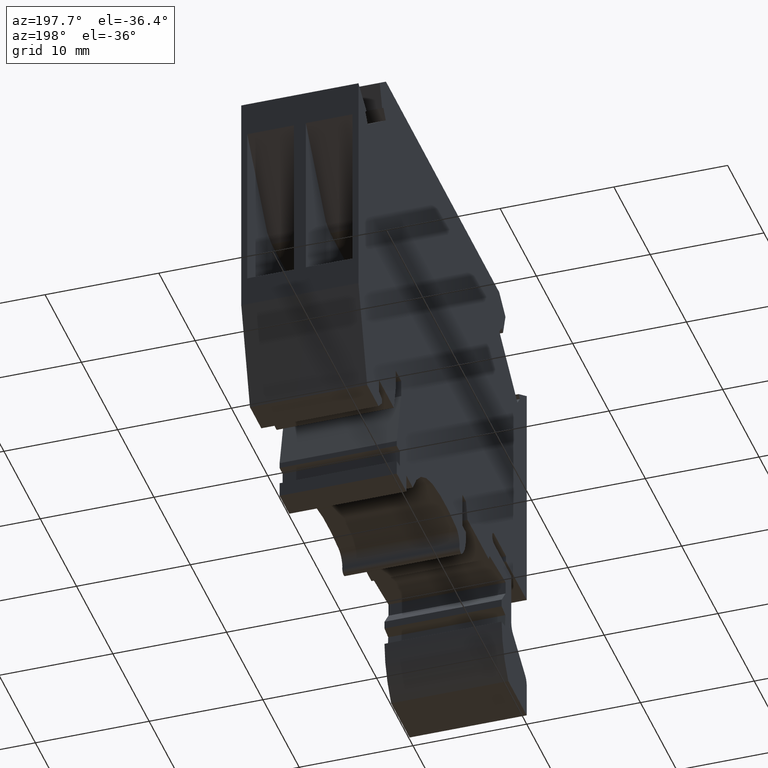
[diagram: clean part render]
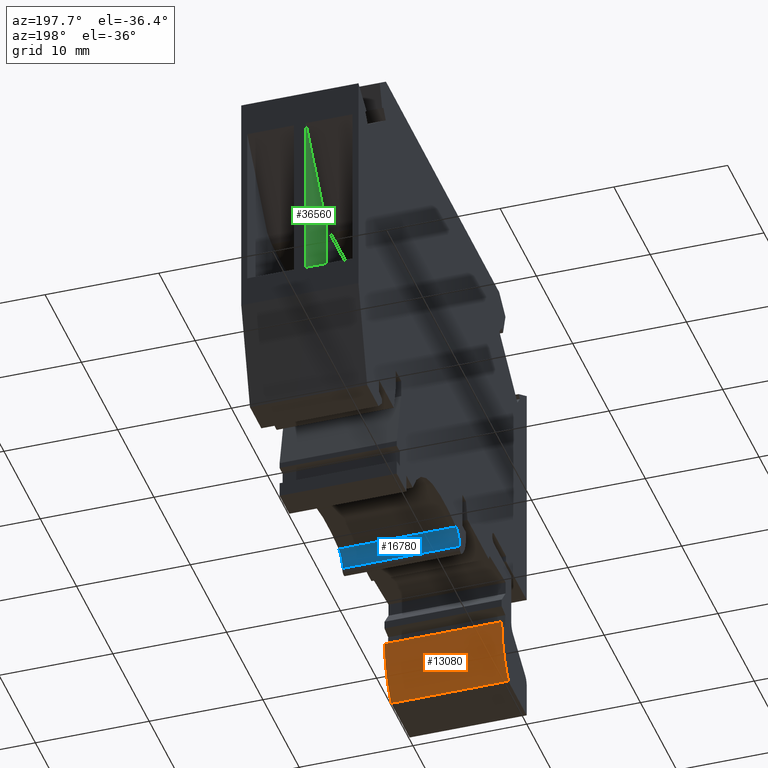
[diagram: same view with three faces highlighted in distinct colors, each labeled with its STEP entity id]
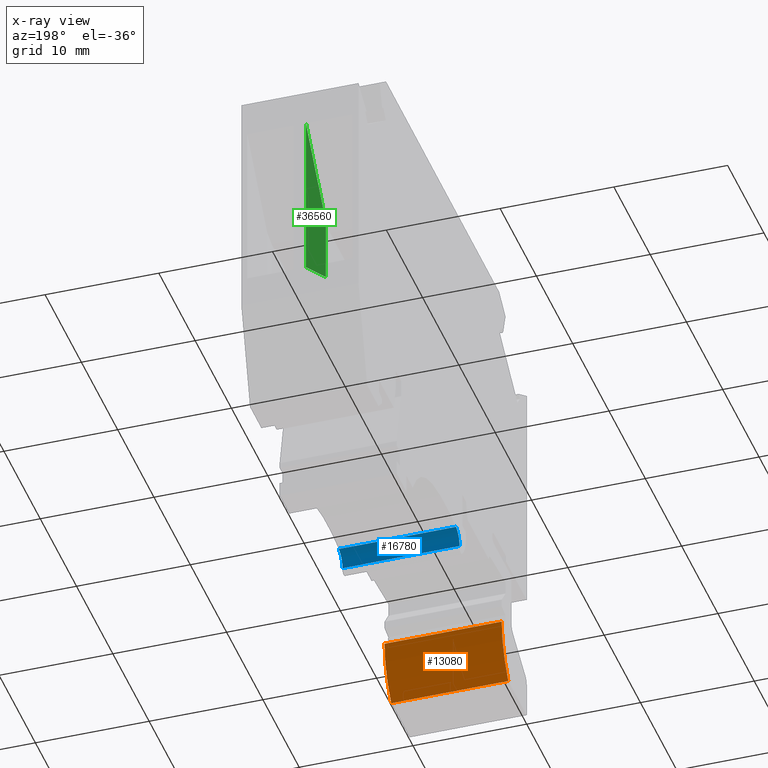
[diagram: x-ray of the same camera — body ghosted, the three highlighted faces saturated]
A machine part, auxiliary view with three faces highlighted in distinct colors.
The next image is the same camera in x-ray (body ghosted, the three faces saturated) — at least one of them is partly hidden behind the body in this view.
Their STEP definitions:

[orange] entity #13080 — the highlighted cylindrical surface (partial cylindrical patch) has radius 7.47 mm, axis along (1, -0, 0).
#4730=CARTESIAN_POINT('',(-37.949420700094,9.12894476048504,10.3));
#4740=VERTEX_POINT('',#4730);
#4770=CARTESIAN_POINT('',(-45.4194206776555,9.12952375155828,10.3));
#4780=DIRECTION('',(0.,0.,1.));
#4790=DIRECTION('',(1.,0.,0.));
#4800=AXIS2_PLACEMENT_3D('',#4770,#4780,#4790);
#4810=CIRCLE('',#4800,7.47);
#4820=CARTESIAN_POINT('',(-39.7810787227897,4.22952375155828,10.3));
#4830=VERTEX_POINT('',#4820);
#4840=EDGE_CURVE('',#4830,#4740,#4810,.T.);
#6620=CARTESIAN_POINT('',(-39.7810787227897,4.22952375155828,
-7.105427357601E-15));
#6630=VERTEX_POINT('',#6620);
#6660=CARTESIAN_POINT('',(-45.4194206776555,9.12952375155828,
3.5527136788005E-15));
#6670=DIRECTION('',(0.,0.,1.));
#6680=DIRECTION('',(1.,0.,0.));
#6690=AXIS2_PLACEMENT_3D('',#6660,#6670,#6680);
#6700=CIRCLE('',#6690,7.47);
#6710=CARTESIAN_POINT('',(-37.949420700094,9.12894476048504,
-7.105427357601E-15));
#6720=VERTEX_POINT('',#6710);
#6730=EDGE_CURVE('',#6630,#6720,#6700,.T.);
#12870=CARTESIAN_POINT('',(-45.4194206776555,9.12952375155828,5.15));
#12880=DIRECTION('',(0.,0.,1.));
#12890=DIRECTION('',(1.,0.,0.));
#12900=AXIS2_PLACEMENT_3D('',#12870,#12880,#12890);
#12910=CYLINDRICAL_SURFACE('',#12900,7.47);
#12920=ORIENTED_EDGE('',*,*,#4840,.F.);
#12930=CARTESIAN_POINT('',(-37.949420700094,9.12894476048504,5.15));
#12940=DIRECTION('',(0.,0.,1.));
#12950=VECTOR('',#12940,1.);
#12960=LINE('',#12930,#12950);
#12970=EDGE_CURVE('',#6720,#4740,#12960,.T.);
#12980=ORIENTED_EDGE('',*,*,#12970,.T.);
#12990=ORIENTED_EDGE('',*,*,#6730,.T.);
#13000=CARTESIAN_POINT('',(-39.7810787227897,4.22952375155828,5.15));
#13010=DIRECTION('',(0.,0.,1.));
#13020=VECTOR('',#13010,1.);
#13030=LINE('',#13000,#13020);
#13040=EDGE_CURVE('',#6630,#4830,#13030,.T.);
#13050=ORIENTED_EDGE('',*,*,#13040,.F.);
#13060=EDGE_LOOP('',(#13050,#12990,#12980,#12920));
#13070=FACE_OUTER_BOUND('',#13060,.T.);
#13080=ADVANCED_FACE('',(#13070),#12910,.T.);

[blue] entity #16780 — the highlighted cylindrical surface (edge-blend (fillet) strip) has radius 1.2 mm, axis along (1, -0, 0).
#3420=CARTESIAN_POINT('',(-25.3616999403209,10.1475104136305,10.3));
#3430=VERTEX_POINT('',#3420);
#3460=CARTESIAN_POINT('',(-25.1387665028014,8.96840029051405,10.3));
#3470=DIRECTION('',(0.,0.,1.));
#3480=DIRECTION('',(1.,0.,0.));
#3490=AXIS2_PLACEMENT_3D('',#3460,#3470,#3480);
#3500=CIRCLE('',#3490,1.19999999999999);
#3510=CARTESIAN_POINT('',(-26.3300155260562,8.82374288629714,10.3));
#3520=VERTEX_POINT('',#3510);
#3530=EDGE_CURVE('',#3430,#3520,#3500,.T.);
#7930=CARTESIAN_POINT('',(-26.3300155260562,8.82374288629714,
-7.105427357601E-15));
#7940=VERTEX_POINT('',#7930);
#7970=CARTESIAN_POINT('',(-25.1387665028014,8.96840029051405,
3.5527136788005E-15));
#7980=DIRECTION('',(0.,0.,1.));
#7990=DIRECTION('',(1.,0.,0.));
#8000=AXIS2_PLACEMENT_3D('',#7970,#7980,#7990);
#8010=CIRCLE('',#8000,1.19999999999999);
#8020=CARTESIAN_POINT('',(-25.3616999403209,10.1475104136305,
-7.105427357601E-15));
#8030=VERTEX_POINT('',#8020);
#8040=EDGE_CURVE('',#8030,#7940,#8010,.T.);
#16460=CARTESIAN_POINT('',(-25.3616999403209,10.1475104136305,5.15));
#16470=DIRECTION('',(0.,0.,-1.));
#16480=VECTOR('',#16470,1.);
#16490=LINE('',#16460,#16480);
#16500=EDGE_CURVE('',#3430,#8030,#16490,.T.);
#16620=CARTESIAN_POINT('',(-25.1387665028014,8.96840029051405,5.15));
#16630=DIRECTION('',(0.,0.,1.));
#16640=DIRECTION('',(1.,0.,0.));
#16650=AXIS2_PLACEMENT_3D('',#16620,#16630,#16640);
#16660=CYLINDRICAL_SURFACE('',#16650,1.19999999999999);
#16670=ORIENTED_EDGE('',*,*,#3530,.T.);
#16680=ORIENTED_EDGE('',*,*,#16500,.F.);
#16690=ORIENTED_EDGE('',*,*,#8040,.F.);
#16700=CARTESIAN_POINT('',(-26.3300155260562,8.82374288629714,5.15));
#16710=DIRECTION('',(0.,0.,-1.));
#16720=VECTOR('',#16710,1.);
#16730=LINE('',#16700,#16720);
#16740=EDGE_CURVE('',#3520,#7940,#16730,.T.);
#16750=ORIENTED_EDGE('',*,*,#16740,.T.);
#16760=EDGE_LOOP('',(#16750,#16690,#16680,#16670));
#16770=FACE_OUTER_BOUND('',#16760,.T.);
#16780=ADVANCED_FACE('',(#16770),#16660,.F.);

[green] entity #36560 — the highlighted planar face has unit normal (1, -0, 0).
#33990=CARTESIAN_POINT('',(1.49790146619231,34.3295237515583,4.625));
#34000=VERTEX_POINT('',#33990);
#34030=CARTESIAN_POINT('',(1.49790146619231,10.9158644389662,4.625));
#34040=DIRECTION('',(0.,1.,0.));
#34050=VECTOR('',#34040,1.);
#34060=LINE('',#34030,#34050);
#34070=CARTESIAN_POINT('',(1.49790146619231,19.3295237515583,4.625));
#34080=VERTEX_POINT('',#34070);
#34090=EDGE_CURVE('',#34080,#34000,#34060,.T.);
#34810=CARTESIAN_POINT('',(-4.02565782276799,27.9338235222359,
4.62500000000001));
#34820=VERTEX_POINT('',#34810);
#34870=CARTESIAN_POINT('',(-19.9165433974443,9.53385075155829,4.625));
#34880=DIRECTION('',(-0.653619870346096,-0.756823007769156,0.));
#34890=VECTOR('',#34880,1.);
#34900=LINE('',#34870,#34890);
#34910=EDGE_CURVE('',#34000,#34820,#34900,.T.);
#36140=CARTESIAN_POINT('',(-4.02565782276799,9.53385075155829,
4.62500000000001));
#36150=DIRECTION('',(0.,1.,0.));
#36160=VECTOR('',#36150,1.);
#36170=LINE('',#36140,#36160);
#36180=CARTESIAN_POINT('',(-4.02565782276799,22.1919350430033,
4.62500000000001));
#36190=VERTEX_POINT('',#36180);
#36200=EDGE_CURVE('',#36190,#34820,#36170,.T.);
#36400=CARTESIAN_POINT('',(1.4979014661923,34.3295237515583,4.625));
#36410=DIRECTION('',(0.,-0.,1.));
#36420=DIRECTION('',(0.,1.,0.));
#36430=AXIS2_PLACEMENT_3D('',#36400,#36410,#36420);
#36440=PLANE('',#36430);
#36450=CARTESIAN_POINT('',(13.4527094661923,13.1343196058094,4.625));
#36460=DIRECTION('',(0.887863315807394,-0.460107305357674,0.));
#36470=VECTOR('',#36460,1.);
#36480=LINE('',#36450,#36470);
#36490=EDGE_CURVE('',#36190,#34080,#36480,.T.);
#36500=ORIENTED_EDGE('',*,*,#36490,.F.);
#36510=ORIENTED_EDGE('',*,*,#34090,.F.);
#36520=ORIENTED_EDGE('',*,*,#34910,.F.);
#36530=ORIENTED_EDGE('',*,*,#36200,.T.);
#36540=EDGE_LOOP('',(#36530,#36520,#36510,#36500));
#36550=FACE_OUTER_BOUND('',#36540,.T.);
#36560=ADVANCED_FACE('',(#36550),#36440,.F.);